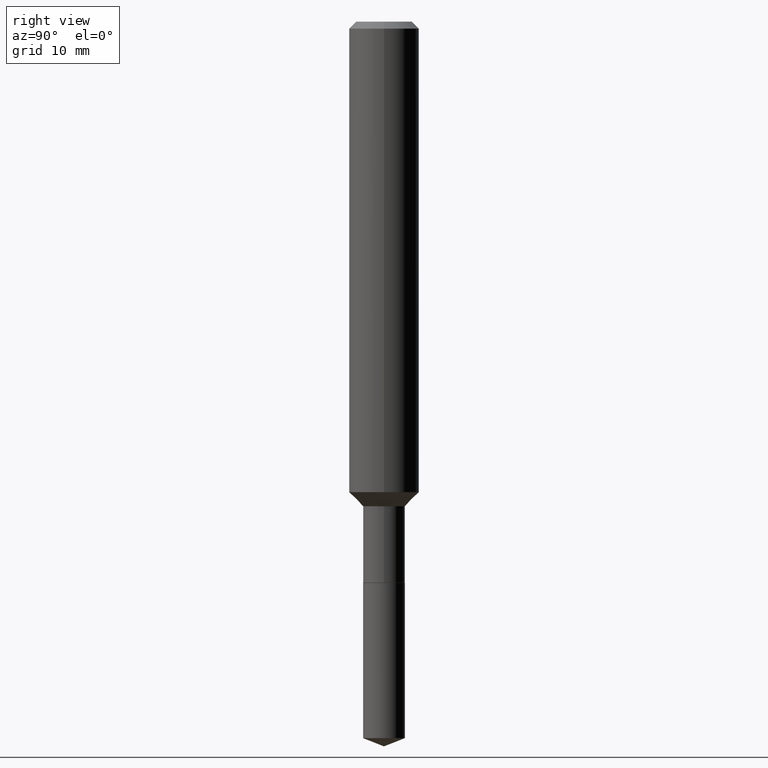
[diagram: clean part render]
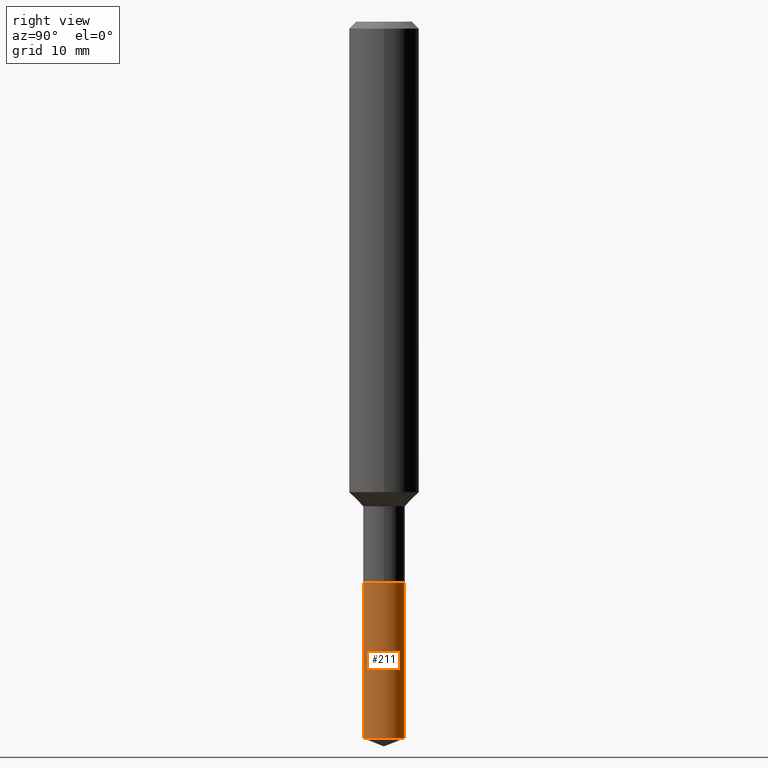
[diagram: same view with one face highlighted and labeled with its STEP entity id]
A machine part, right view. The second image highlights one B-rep face of the part: STEP entity #211.
In plain terms, the highlighted cylindrical surface (edge-blend (fillet) strip) has radius 1.7856 mm, axis along (-0, 0, 1).
Its self-contained STEP definition (entity closure, byte-faithful):
#16 = DIRECTION ( 'NONE',  ( -2.426947592678621313E-29, 3.518004770746482411E-15, 1.000000000000000000 ) ) ;
#22 = VECTOR ( 'NONE', #387, 39.37007874015748143 ) ;
#25 = EDGE_LOOP ( 'NONE', ( #77, #44, #146, #253 ) ) ;
#27 = CIRCLE ( 'NONE', #351, 0.07030000000000001525 ) ;
#34 = CARTESIAN_POINT ( 'NONE',  ( 4.621202403048052644E-29, -6.597852286011891701E-15, -1.889699999999999713 ) ) ;
#44 = ORIENTED_EDGE ( 'NONE', *, *, #59, .T. ) ;
#59 = EDGE_CURVE ( 'NONE', #354, #270, #84, .T. ) ;
#67 = VERTEX_POINT ( 'NONE', #468 ) ;
#68 = FACE_OUTER_BOUND ( 'NONE', #25, .T. ) ;
#69 = AXIS2_PLACEMENT_3D ( 'NONE', #117, #267, #420 ) ;
#77 = ORIENTED_EDGE ( 'NONE', *, *, #138, .T. ) ;
#79 = AXIS2_PLACEMENT_3D ( 'NONE', #34, #455, #189 ) ;
#84 = LINE ( 'NONE', #228, #22 ) ;
#85 = CYLINDRICAL_SURFACE ( 'NONE', #79, 0.07030000000000000138 ) ;
#92 = LINE ( 'NONE', #394, #269 ) ;
#117 = CARTESIAN_POINT ( 'NONE',  ( 4.621202403048053204E-29, -6.597852286011892490E-15, -1.889700000000000157 ) ) ;
#138 = EDGE_CURVE ( 'NONE', #154, #354, #27, .T. ) ;
#146 = ORIENTED_EDGE ( 'NONE', *, *, #251, .F. ) ;
#154 = VERTEX_POINT ( 'NONE', #446 ) ;
#166 = DIRECTION ( 'NONE',  ( -2.426947592678621032E-29, 3.518004770746482806E-15, 1.000000000000000000 ) ) ;
#189 = DIRECTION ( 'NONE',  ( -6.982962677686266711E-15, -1.000000000000000000, 3.885985766236505386E-15 ) ) ;
#194 = DIRECTION ( 'NONE',  ( -6.982962677686266711E-15, -1.000000000000000000, 3.885985766236504597E-15 ) ) ;
#211 = ADVANCED_FACE ( 'NONE', ( #68 ), #85, .T. ) ;
#228 = CARTESIAN_POINT ( 'NONE',  ( 4.995115432393966874E-16, 0.07029999999999340943, -1.889700000000000157 ) ) ;
#251 = EDGE_CURVE ( 'NONE', #67, #270, #287, .T. ) ;
#253 = ORIENTED_EDGE ( 'NONE', *, *, #366, .F. ) ;
#267 = DIRECTION ( 'NONE',  ( -2.426947592678621032E-29, 3.518004770746482806E-15, 1.000000000000000000 ) ) ;
#269 = VECTOR ( 'NONE', #16, 39.37007874015748143 ) ;
#270 = VERTEX_POINT ( 'NONE', #391 ) ;
#287 = CIRCLE ( 'NONE', #69, 0.07030000000000000138 ) ;
#297 = CARTESIAN_POINT ( 'NONE',  ( 5.891729110471632150E-29, -8.439556256695389981E-15, -2.413208093564270129 ) ) ;
#345 = CARTESIAN_POINT ( 'NONE',  ( 4.995115432394094078E-16, 0.07029999999999157756, -2.413208093564270129 ) ) ;
#351 = AXIS2_PLACEMENT_3D ( 'NONE', #297, #166, #194 ) ;
#354 = VERTEX_POINT ( 'NONE', #345 ) ;
#366 = EDGE_CURVE ( 'NONE', #154, #67, #92, .T. ) ;
#387 = DIRECTION ( 'NONE',  ( -2.426947592678621313E-29, 3.518004770746482411E-15, 1.000000000000000000 ) ) ;
#391 = CARTESIAN_POINT ( 'NONE',  ( 4.995115432394095064E-16, 0.07029999999999340943, -1.889700000000000379 ) ) ;
#394 = CARTESIAN_POINT ( 'NONE',  ( -4.909022762412983059E-16, -0.07030000000000660720, -1.889699999999999491 ) ) ;
#420 = DIRECTION ( 'NONE',  ( -6.982962677686265133E-15, -1.000000000000000000, 3.885985766236505386E-15 ) ) ;
#446 = CARTESIAN_POINT ( 'NONE',  ( -4.909022762412856842E-16, -0.07030000000000845295, -2.413208093564269685 ) ) ;
#455 = DIRECTION ( 'NONE',  ( -2.426947592678621032E-29, 3.518004770746482806E-15, 1.000000000000000000 ) ) ;
#468 = CARTESIAN_POINT ( 'NONE',  ( -4.909022762412983059E-16, -0.07030000000000659333, -1.889699999999999713 ) ) ;